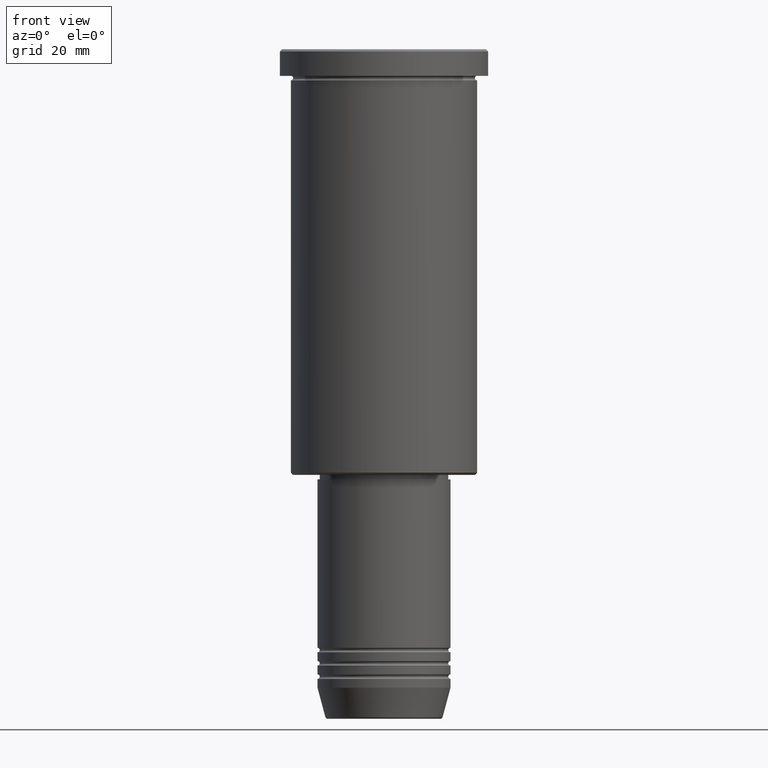
[diagram: clean part render]
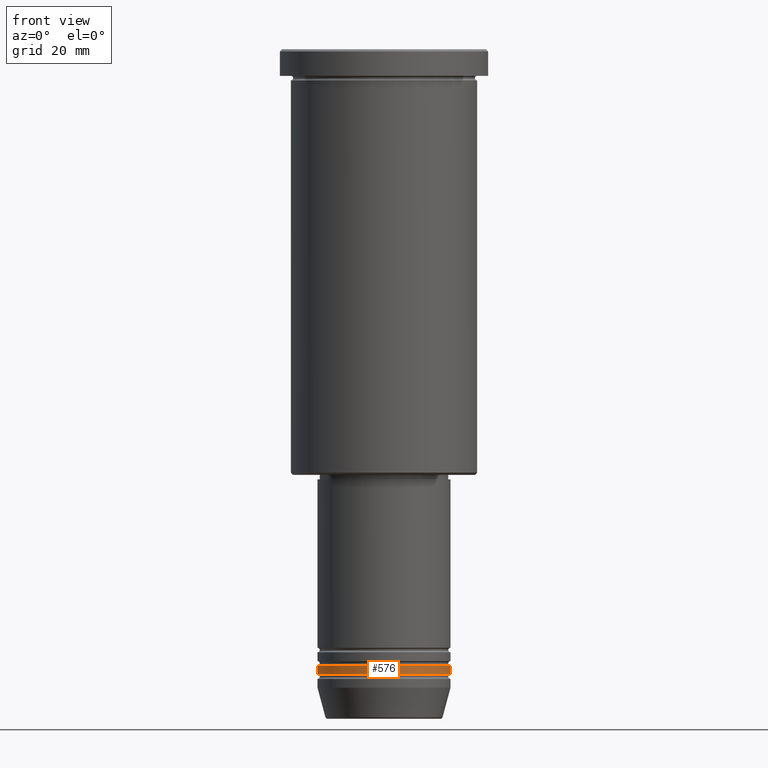
[diagram: same view with one face highlighted and labeled with its STEP entity id]
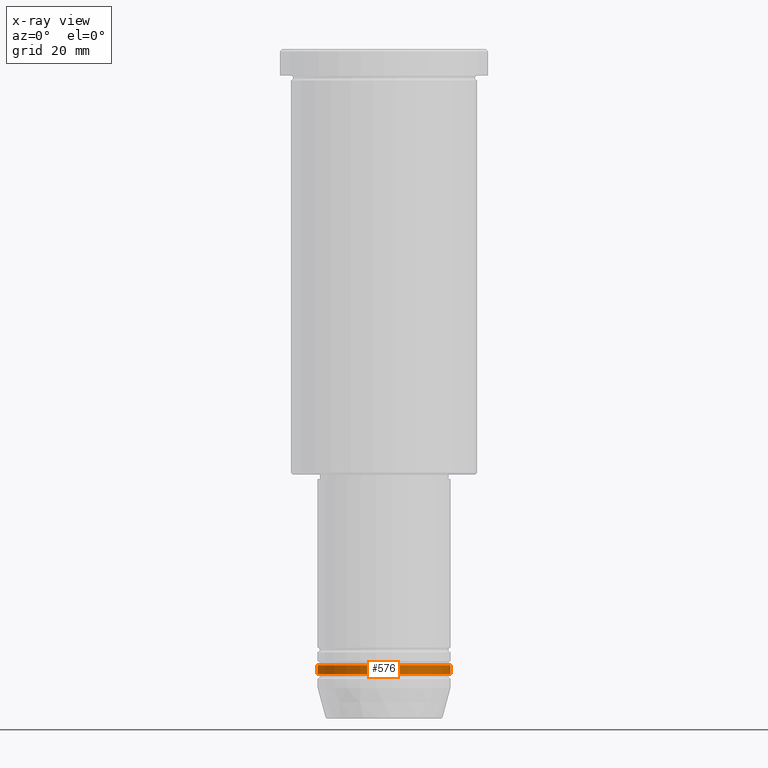
[diagram: x-ray of the same camera — body ghosted, the highlighted face saturated]
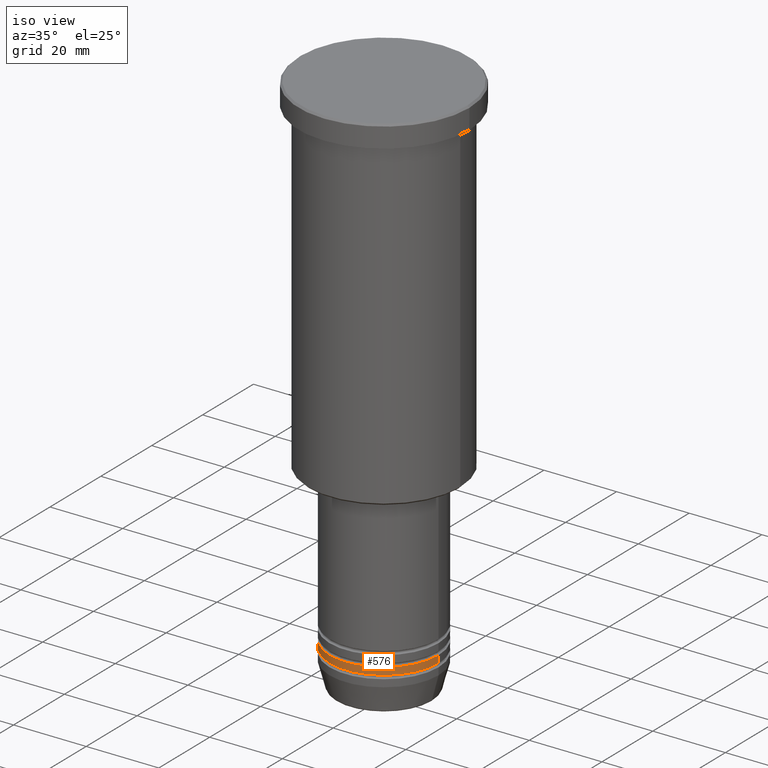
[diagram: same view with one face highlighted and labeled with its STEP entity id]
A machine part, front view. The second image highlights one B-rep face of the part: STEP entity #576.
The next image is the same camera in x-ray: the body ghosted, the highlighted face saturated — about 0% of this face is hidden behind the body in this view.
A second angle (iso view) of the same face is appended — the face is thin or edge-on in the first view.
In plain terms, the highlighted cylindrical surface (partial cylindrical patch) has radius 15 mm, axis along (-0, -0, 1).
Its self-contained STEP definition (entity closure, byte-faithful):
#14 = CIRCLE ( 'NONE', #842, 15.00000000000000000 ) ;
#70 = DIRECTION ( 'NONE',  ( -0.000000000000000000, -0.000000000000000000, 1.000000000000000000 ) ) ;
#76 = ORIENTED_EDGE ( 'NONE', *, *, #695, .T. ) ;
#183 = LINE ( 'NONE', #473, #705 ) ;
#242 = EDGE_CURVE ( 'NONE', #848, #869, #398, .T. ) ;
#260 = CARTESIAN_POINT ( 'NONE',  ( 0.000000000000000000, 0.000000000000000000, -138.9999999999999716 ) ) ;
#348 = DIRECTION ( 'NONE',  ( -0.000000000000000000, -0.000000000000000000, 1.000000000000000000 ) ) ;
#356 = DIRECTION ( 'NONE',  ( -0.000000000000000000, -0.000000000000000000, 1.000000000000000000 ) ) ;
#368 = ORIENTED_EDGE ( 'NONE', *, *, #750, .T. ) ;
#397 = CYLINDRICAL_SURFACE ( 'NONE', #723, 15.00000000000000000 ) ;
#398 = CIRCLE ( 'NONE', #909, 15.00000000000000000 ) ;
#425 = CARTESIAN_POINT ( 'NONE',  ( 15.00000000000000000, 0.000000000000000000, 0.000000000000000000 ) ) ;
#431 = LINE ( 'NONE', #425, #1066 ) ;
#457 = DIRECTION ( 'NONE',  ( -0.000000000000000000, -0.000000000000000000, 1.000000000000000000 ) ) ;
#473 = CARTESIAN_POINT ( 'NONE',  ( -15.00000000000000000, 1.836970198721029589E-15, 0.000000000000000000 ) ) ;
#548 = ORIENTED_EDGE ( 'NONE', *, *, #242, .F. ) ;
#576 = ADVANCED_FACE ( 'NONE', ( #862 ), #397, .T. ) ;
#596 = CARTESIAN_POINT ( 'NONE',  ( 15.00000000000000000, 0.000000000000000000, -141.0000000000000000 ) ) ;
#607 = DIRECTION ( 'NONE',  ( 1.000000000000000000, 0.000000000000000000, 0.000000000000000000 ) ) ;
#610 = VERTEX_POINT ( 'NONE', #596 ) ;
#622 = DIRECTION ( 'NONE',  ( 1.000000000000000000, 0.000000000000000000, 0.000000000000000000 ) ) ;
#630 = CARTESIAN_POINT ( 'NONE',  ( -15.00000000000000000, 1.836970198721029589E-15, -141.0000000000000000 ) ) ;
#680 = DIRECTION ( 'NONE',  ( 1.000000000000000000, 0.000000000000000000, 0.000000000000000000 ) ) ;
#693 = DIRECTION ( 'NONE',  ( -0.000000000000000000, -0.000000000000000000, 1.000000000000000000 ) ) ;
#695 = EDGE_CURVE ( 'NONE', #787, #610, #14, .T. ) ;
#705 = VECTOR ( 'NONE', #457, 1000.000000000000000 ) ;
#723 = AXIS2_PLACEMENT_3D ( 'NONE', #1122, #693, #680 ) ;
#750 = EDGE_CURVE ( 'NONE', #610, #869, #431, .T. ) ;
#787 = VERTEX_POINT ( 'NONE', #630 ) ;
#836 = EDGE_CURVE ( 'NONE', #787, #848, #183, .T. ) ;
#842 = AXIS2_PLACEMENT_3D ( 'NONE', #1150, #348, #607 ) ;
#848 = VERTEX_POINT ( 'NONE', #1010 ) ;
#862 = FACE_OUTER_BOUND ( 'NONE', #1096, .T. ) ;
#869 = VERTEX_POINT ( 'NONE', #1182 ) ;
#909 = AXIS2_PLACEMENT_3D ( 'NONE', #260, #356, #622 ) ;
#919 = ORIENTED_EDGE ( 'NONE', *, *, #836, .F. ) ;
#1010 = CARTESIAN_POINT ( 'NONE',  ( -15.00000000000000000, 1.836970198721029589E-15, -138.9999999999999716 ) ) ;
#1066 = VECTOR ( 'NONE', #70, 1000.000000000000000 ) ;
#1096 = EDGE_LOOP ( 'NONE', ( #919, #76, #368, #548 ) ) ;
#1122 = CARTESIAN_POINT ( 'NONE',  ( 0.000000000000000000, 0.000000000000000000, 0.000000000000000000 ) ) ;
#1150 = CARTESIAN_POINT ( 'NONE',  ( 0.000000000000000000, 0.000000000000000000, -141.0000000000000000 ) ) ;
#1182 = CARTESIAN_POINT ( 'NONE',  ( 15.00000000000000000, 0.000000000000000000, -138.9999999999999716 ) ) ;